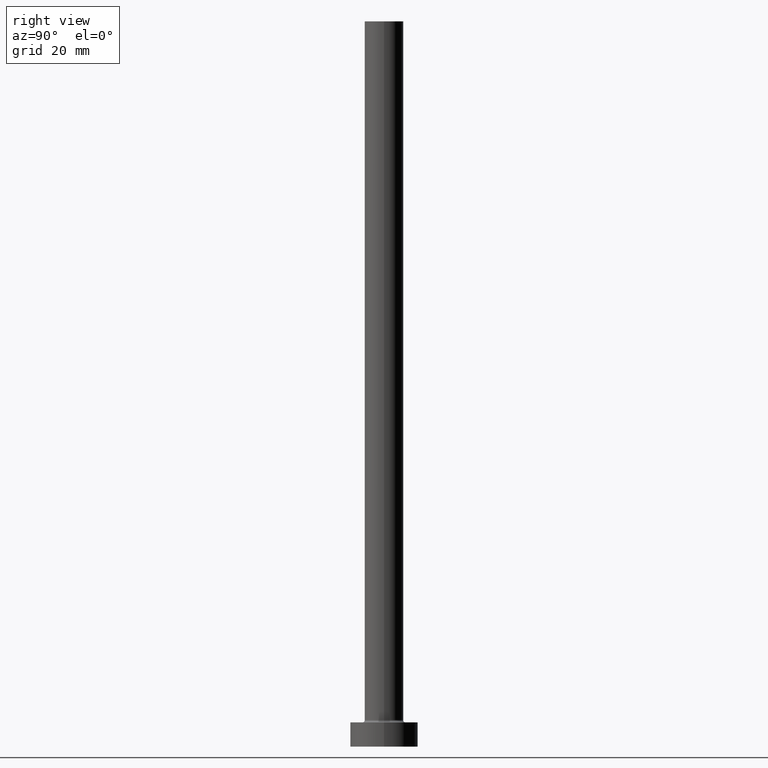
[diagram: clean part render]
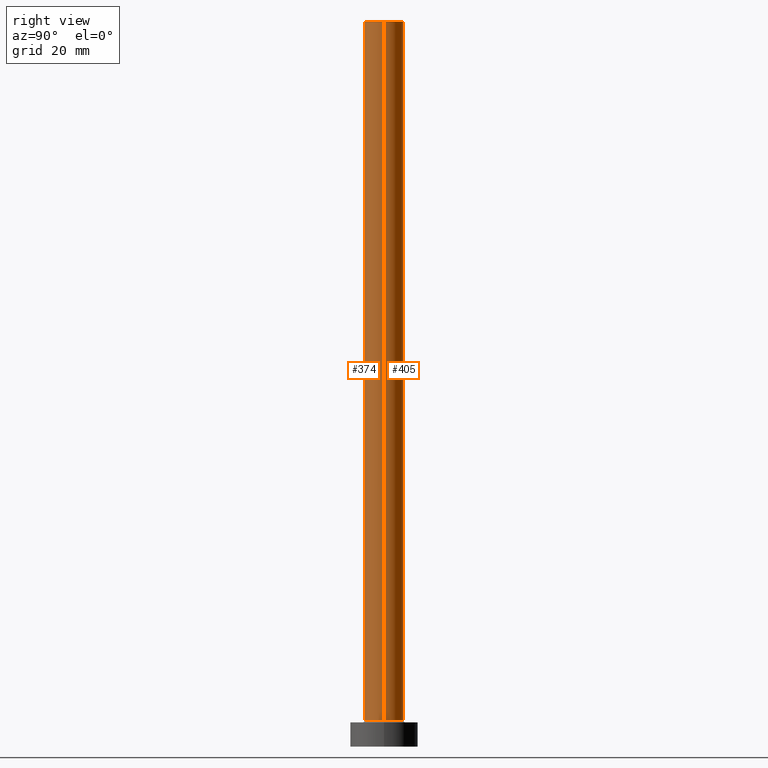
[diagram: same view with one multi-face feature highlighted, each face labeled with its STEP entity id]
A machine part, right view. The highlighted faces form ONE feature: a constant-radius fillet chain: 2 tangent blend faces with common blend radius 4 mm. The faces share edges in the B-rep.
Their STEP definitions:
[1] entity #374 (Cylinder):
#9 = ORIENTED_EDGE ( 'NONE', *, *, #197, .T. ) ;
#11 = CARTESIAN_POINT ( 'NONE',  ( -4.000000000000000000, 0.000000000000000000, 150.0000000000000000 ) ) ;
#12 = EDGE_CURVE ( 'NONE', #256, #127, #291, .T. ) ;
#14 = CARTESIAN_POINT ( 'NONE',  ( 0.000000000000000000, 0.000000000000000000, 5.500000000000005329 ) ) ;
#19 = AXIS2_PLACEMENT_3D ( 'NONE', #14, #378, #338 ) ;
#35 = DIRECTION ( 'NONE',  ( -0.000000000000000000, -0.000000000000000000, -1.000000000000000000 ) ) ;
#38 = CARTESIAN_POINT ( 'NONE',  ( -4.000000000000000000, 0.000000000000000000, 150.0000000000000000 ) ) ;
#42 = DIRECTION ( 'NONE',  ( 0.000000000000000000, 0.000000000000000000, 1.000000000000000000 ) ) ;
#68 = CARTESIAN_POINT ( 'NONE',  ( 4.000000000000000000, 4.898587196589412829E-16, 150.0000000000000000 ) ) ;
#69 = EDGE_CURVE ( 'NONE', #183, #330, #387, .T. ) ;
#71 = CARTESIAN_POINT ( 'NONE',  ( 0.000000000000000000, 0.000000000000000000, 150.0000000000000000 ) ) ;
#73 = CARTESIAN_POINT ( 'NONE',  ( 0.000000000000000000, 0.000000000000000000, 150.0000000000000000 ) ) ;
#79 = DIRECTION ( 'NONE',  ( 1.000000000000000000, 0.000000000000000000, 0.000000000000000000 ) ) ;
#117 = CYLINDRICAL_SURFACE ( 'NONE', #120, 4.000000000000000000 ) ;
#120 = AXIS2_PLACEMENT_3D ( 'NONE', #71, #328, #432 ) ;
#127 = VERTEX_POINT ( 'NONE', #448 ) ;
#171 = ORIENTED_EDGE ( 'NONE', *, *, #392, .F. ) ;
#174 = EDGE_LOOP ( 'NONE', ( #350, #171, #199, #9 ) ) ;
#179 = CARTESIAN_POINT ( 'NONE',  ( 4.000000000000000000, 4.898587196589412829E-16, 5.500000000000005329 ) ) ;
#183 = VERTEX_POINT ( 'NONE', #191 ) ;
#191 = CARTESIAN_POINT ( 'NONE',  ( 4.000000000000000000, 4.898587196589412829E-16, 150.0000000000000000 ) ) ;
#197 = EDGE_CURVE ( 'NONE', #127, #330, #239, .T. ) ;
#199 = ORIENTED_EDGE ( 'NONE', *, *, #12, .T. ) ;
#205 = DIRECTION ( 'NONE',  ( -0.000000000000000000, -0.000000000000000000, -1.000000000000000000 ) ) ;
#216 = AXIS2_PLACEMENT_3D ( 'NONE', #73, #42, #79 ) ;
#239 = CIRCLE ( 'NONE', #19, 4.000000000000000000 ) ;
#256 = VERTEX_POINT ( 'NONE', #11 ) ;
#285 = VECTOR ( 'NONE', #205, 1000.000000000000000 ) ;
#290 = FACE_OUTER_BOUND ( 'NONE', #174, .T. ) ;
#291 = LINE ( 'NONE', #38, #391 ) ;
#300 = CIRCLE ( 'NONE', #216, 4.000000000000000000 ) ;
#328 = DIRECTION ( 'NONE',  ( -0.000000000000000000, -0.000000000000000000, -1.000000000000000000 ) ) ;
#330 = VERTEX_POINT ( 'NONE', #179 ) ;
#338 = DIRECTION ( 'NONE',  ( 1.000000000000000000, 0.000000000000000000, 0.000000000000000000 ) ) ;
#350 = ORIENTED_EDGE ( 'NONE', *, *, #69, .F. ) ;
#374 = ADVANCED_FACE ( 'NONE', ( #290 ), #117, .T. ) ;
#378 = DIRECTION ( 'NONE',  ( 0.000000000000000000, 0.000000000000000000, 1.000000000000000000 ) ) ;
#387 = LINE ( 'NONE', #68, #285 ) ;
#391 = VECTOR ( 'NONE', #35, 1000.000000000000000 ) ;
#392 = EDGE_CURVE ( 'NONE', #256, #183, #300, .T. ) ;
#432 = DIRECTION ( 'NONE',  ( -1.000000000000000000, 0.000000000000000000, 0.000000000000000000 ) ) ;
#448 = CARTESIAN_POINT ( 'NONE',  ( -4.000000000000000000, 0.000000000000000000, 5.500000000000005329 ) ) ;
[2] entity #405 (Cylinder):
#5 = DIRECTION ( 'NONE',  ( 1.000000000000000000, 0.000000000000000000, 0.000000000000000000 ) ) ;
#11 = CARTESIAN_POINT ( 'NONE',  ( -4.000000000000000000, 0.000000000000000000, 150.0000000000000000 ) ) ;
#12 = EDGE_CURVE ( 'NONE', #256, #127, #291, .T. ) ;
#35 = DIRECTION ( 'NONE',  ( -0.000000000000000000, -0.000000000000000000, -1.000000000000000000 ) ) ;
#38 = CARTESIAN_POINT ( 'NONE',  ( -4.000000000000000000, 0.000000000000000000, 150.0000000000000000 ) ) ;
#44 = FACE_OUTER_BOUND ( 'NONE', #159, .T. ) ;
#49 = DIRECTION ( 'NONE',  ( -1.000000000000000000, 0.000000000000000000, 0.000000000000000000 ) ) ;
#51 = ORIENTED_EDGE ( 'NONE', *, *, #12, .F. ) ;
#68 = CARTESIAN_POINT ( 'NONE',  ( 4.000000000000000000, 4.898587196589412829E-16, 150.0000000000000000 ) ) ;
#69 = EDGE_CURVE ( 'NONE', #183, #330, #387, .T. ) ;
#109 = DIRECTION ( 'NONE',  ( 0.000000000000000000, 0.000000000000000000, 1.000000000000000000 ) ) ;
#127 = VERTEX_POINT ( 'NONE', #448 ) ;
#142 = DIRECTION ( 'NONE',  ( 1.000000000000000000, 0.000000000000000000, 0.000000000000000000 ) ) ;
#159 = EDGE_LOOP ( 'NONE', ( #172, #261, #265, #51 ) ) ;
#172 = ORIENTED_EDGE ( 'NONE', *, *, #363, .F. ) ;
#179 = CARTESIAN_POINT ( 'NONE',  ( 4.000000000000000000, 4.898587196589412829E-16, 5.500000000000005329 ) ) ;
#183 = VERTEX_POINT ( 'NONE', #191 ) ;
#185 = CARTESIAN_POINT ( 'NONE',  ( 0.000000000000000000, 0.000000000000000000, 150.0000000000000000 ) ) ;
#191 = CARTESIAN_POINT ( 'NONE',  ( 4.000000000000000000, 4.898587196589412829E-16, 150.0000000000000000 ) ) ;
#205 = DIRECTION ( 'NONE',  ( -0.000000000000000000, -0.000000000000000000, -1.000000000000000000 ) ) ;
#219 = CYLINDRICAL_SURFACE ( 'NONE', #361, 4.000000000000000000 ) ;
#232 = AXIS2_PLACEMENT_3D ( 'NONE', #185, #109, #5 ) ;
#246 = AXIS2_PLACEMENT_3D ( 'NONE', #319, #359, #142 ) ;
#256 = VERTEX_POINT ( 'NONE', #11 ) ;
#261 = ORIENTED_EDGE ( 'NONE', *, *, #69, .T. ) ;
#265 = ORIENTED_EDGE ( 'NONE', *, *, #340, .T. ) ;
#285 = VECTOR ( 'NONE', #205, 1000.000000000000000 ) ;
#291 = LINE ( 'NONE', #38, #391 ) ;
#319 = CARTESIAN_POINT ( 'NONE',  ( 0.000000000000000000, 0.000000000000000000, 5.500000000000005329 ) ) ;
#323 = CARTESIAN_POINT ( 'NONE',  ( 0.000000000000000000, 0.000000000000000000, 150.0000000000000000 ) ) ;
#330 = VERTEX_POINT ( 'NONE', #179 ) ;
#340 = EDGE_CURVE ( 'NONE', #330, #127, #450, .T. ) ;
#359 = DIRECTION ( 'NONE',  ( 0.000000000000000000, 0.000000000000000000, 1.000000000000000000 ) ) ;
#361 = AXIS2_PLACEMENT_3D ( 'NONE', #323, #366, #49 ) ;
#363 = EDGE_CURVE ( 'NONE', #183, #256, #385, .T. ) ;
#366 = DIRECTION ( 'NONE',  ( -0.000000000000000000, -0.000000000000000000, -1.000000000000000000 ) ) ;
#385 = CIRCLE ( 'NONE', #232, 4.000000000000000000 ) ;
#387 = LINE ( 'NONE', #68, #285 ) ;
#391 = VECTOR ( 'NONE', #35, 1000.000000000000000 ) ;
#405 = ADVANCED_FACE ( 'NONE', ( #44 ), #219, .T. ) ;
#448 = CARTESIAN_POINT ( 'NONE',  ( -4.000000000000000000, 0.000000000000000000, 5.500000000000005329 ) ) ;
#450 = CIRCLE ( 'NONE', #246, 4.000000000000000000 ) ;